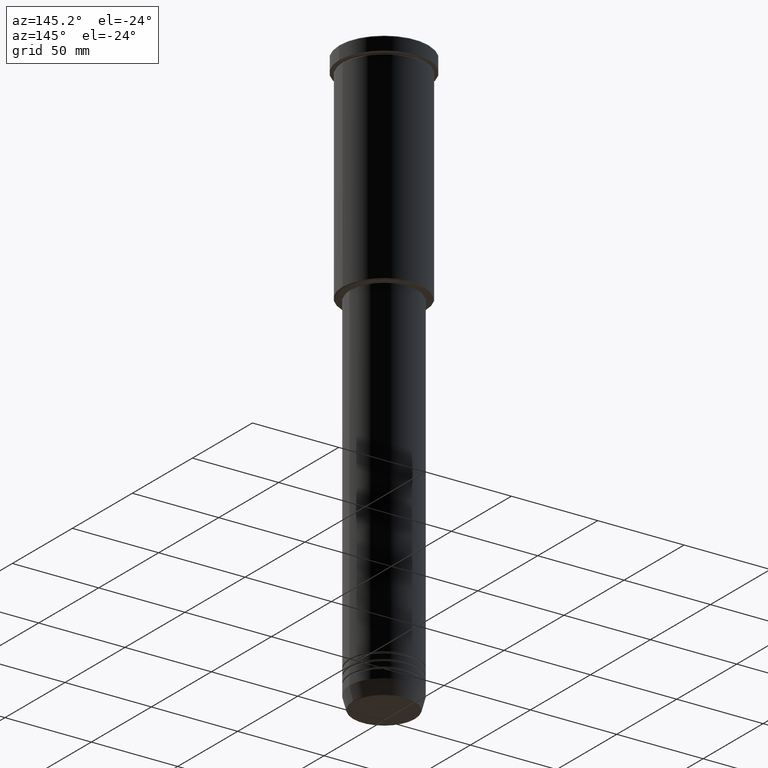
[diagram: clean part render]
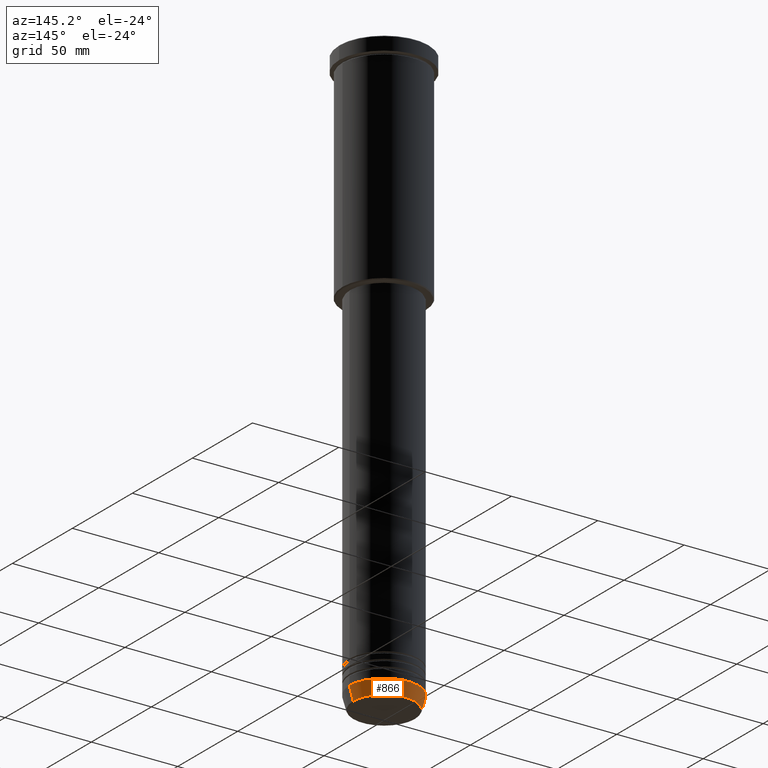
[diagram: same view with one face highlighted and labeled with its STEP entity id]
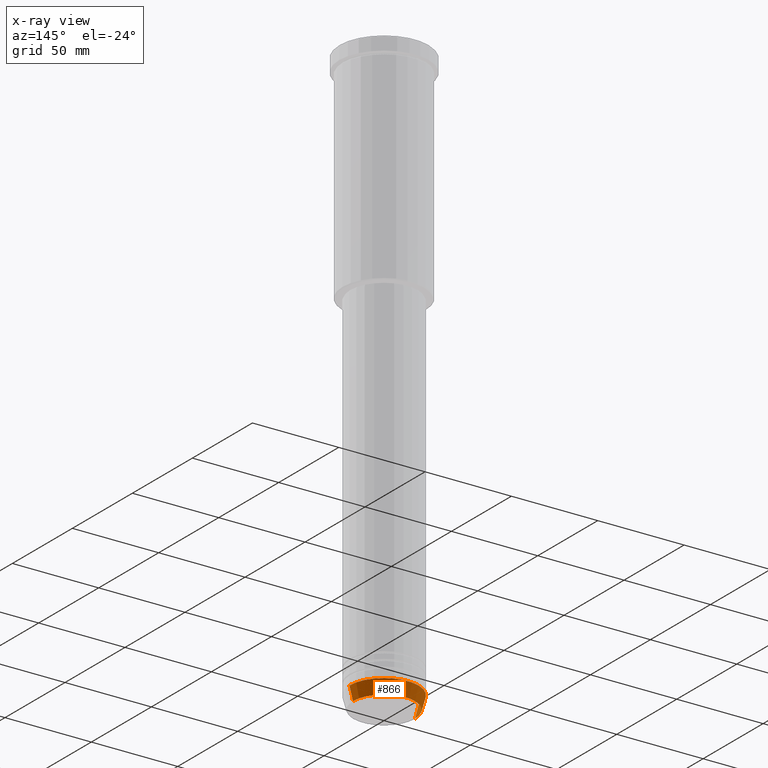
[diagram: x-ray of the same camera — body ghosted, the highlighted face saturated]
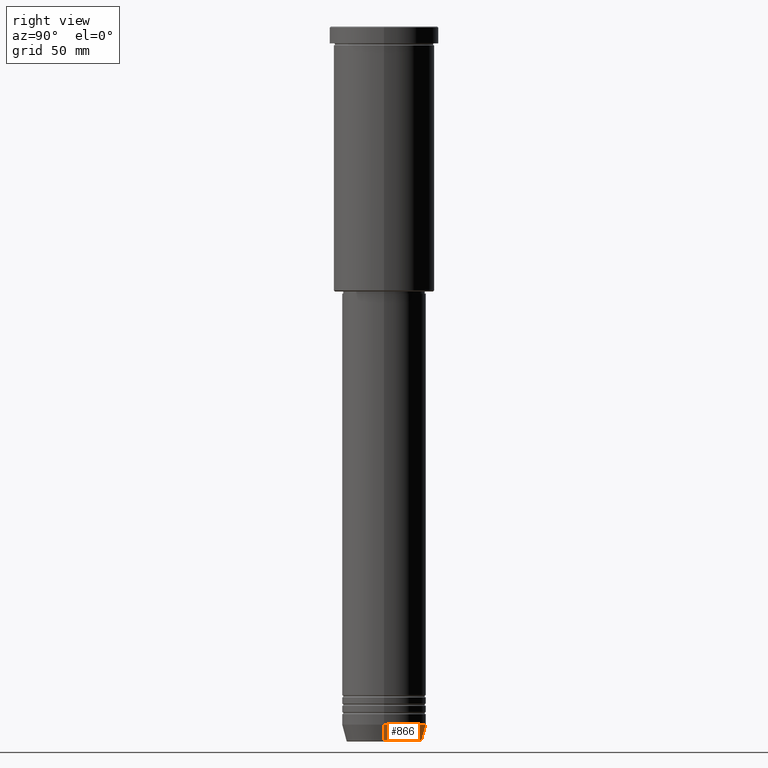
[diagram: same view with one face highlighted and labeled with its STEP entity id]
A machine part, auxiliary view. The second image highlights one B-rep face of the part: STEP entity #866.
The next image is the same camera in x-ray: the body ghosted, the highlighted face saturated — about 0% of this face is hidden behind the body in this view.
A second angle (right view) of the same face is appended — the face is thin or edge-on in the first view.
In plain terms, the highlighted conical surface has half-angle 15 deg.
Its self-contained STEP definition (entity closure, byte-faithful):
#9 = CARTESIAN_POINT ( 'NONE',  ( 17.95570587970608045, 0.000000000000000000, -339.6294095225512706 ) ) ;
#16 = AXIS2_PLACEMENT_3D ( 'NONE', #510, #63, #790 ) ;
#63 = DIRECTION ( 'NONE',  ( -0.000000000000000000, -0.000000000000000000, 1.000000000000000000 ) ) ;
#74 = CIRCLE ( 'NONE', #699, 17.95570587970608045 ) ;
#95 = CARTESIAN_POINT ( 'NONE',  ( -17.95570587970608045, 2.324116685748021371E-15, -339.6294095225512706 ) ) ;
#116 = EDGE_CURVE ( 'NONE', #706, #701, #721, .T. ) ;
#137 = FACE_OUTER_BOUND ( 'NONE', #1014, .T. ) ;
#151 = DIRECTION ( 'NONE',  ( 1.000000000000000000, 0.000000000000000000, 0.000000000000000000 ) ) ;
#231 = VECTOR ( 'NONE', #502, 1000.000000000000114 ) ;
#340 = LINE ( 'NONE', #1070, #231 ) ;
#448 = CARTESIAN_POINT ( 'NONE',  ( -20.00000000000000355, 2.449293598294706907E-15, -332.0000000000000000 ) ) ;
#502 = DIRECTION ( 'NONE',  ( 0.2588190451025212391, 0.000000000000000000, 0.9659258262890680902 ) ) ;
#510 = CARTESIAN_POINT ( 'NONE',  ( 0.000000000000000000, 0.000000000000000000, -332.0000000000000000 ) ) ;
#529 = EDGE_CURVE ( 'NONE', #676, #1110, #340, .T. ) ;
#582 = ORIENTED_EDGE ( 'NONE', *, *, #1177, .F. ) ;
#594 = VECTOR ( 'NONE', #1088, 1000.000000000000114 ) ;
#604 = CARTESIAN_POINT ( 'NONE',  ( 0.000000000000000000, 0.000000000000000000, -339.6294095225512706 ) ) ;
#631 = CARTESIAN_POINT ( 'NONE',  ( -20.00000000000000355, 2.449293598294706907E-15, -332.0000000000000000 ) ) ;
#650 = ORIENTED_EDGE ( 'NONE', *, *, #784, .T. ) ;
#676 = VERTEX_POINT ( 'NONE', #9 ) ;
#699 = AXIS2_PLACEMENT_3D ( 'NONE', #604, #864, #971 ) ;
#701 = VERTEX_POINT ( 'NONE', #631 ) ;
#703 = CARTESIAN_POINT ( 'NONE',  ( 0.000000000000000000, 0.000000000000000000, -332.0000000000000000 ) ) ;
#706 = VERTEX_POINT ( 'NONE', #95 ) ;
#711 = CARTESIAN_POINT ( 'NONE',  ( 20.00000000000000355, 0.000000000000000000, -332.0000000000000000 ) ) ;
#721 = LINE ( 'NONE', #448, #594 ) ;
#742 = ORIENTED_EDGE ( 'NONE', *, *, #116, .T. ) ;
#755 = ORIENTED_EDGE ( 'NONE', *, *, #529, .F. ) ;
#784 = EDGE_CURVE ( 'NONE', #676, #706, #74, .T. ) ;
#790 = DIRECTION ( 'NONE',  ( 1.000000000000000000, 0.000000000000000000, 0.000000000000000000 ) ) ;
#797 = DIRECTION ( 'NONE',  ( -0.000000000000000000, -0.000000000000000000, 1.000000000000000000 ) ) ;
#836 = CONICAL_SURFACE ( 'NONE', #1176, 20.00000000000000355, 0.2617993877991499629 ) ;
#864 = DIRECTION ( 'NONE',  ( -0.000000000000000000, -0.000000000000000000, 1.000000000000000000 ) ) ;
#866 = ADVANCED_FACE ( 'NONE', ( #137 ), #836, .T. ) ;
#895 = CIRCLE ( 'NONE', #16, 20.00000000000000355 ) ;
#971 = DIRECTION ( 'NONE',  ( 1.000000000000000000, 0.000000000000000000, 0.000000000000000000 ) ) ;
#1014 = EDGE_LOOP ( 'NONE', ( #650, #742, #582, #755 ) ) ;
#1070 = CARTESIAN_POINT ( 'NONE',  ( 20.00000000000000355, 0.000000000000000000, -332.0000000000000000 ) ) ;
#1088 = DIRECTION ( 'NONE',  ( -0.2588190451025212391, 3.169619151431771721E-17, 0.9659258262890680902 ) ) ;
#1110 = VERTEX_POINT ( 'NONE', #711 ) ;
#1176 = AXIS2_PLACEMENT_3D ( 'NONE', #703, #797, #151 ) ;
#1177 = EDGE_CURVE ( 'NONE', #1110, #701, #895, .T. ) ;